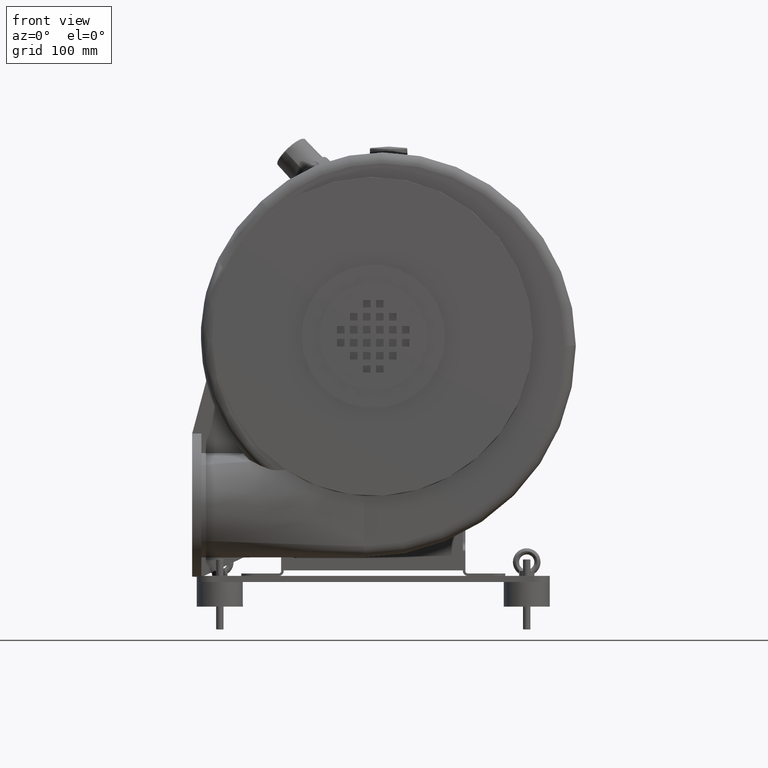
[diagram: clean part render]
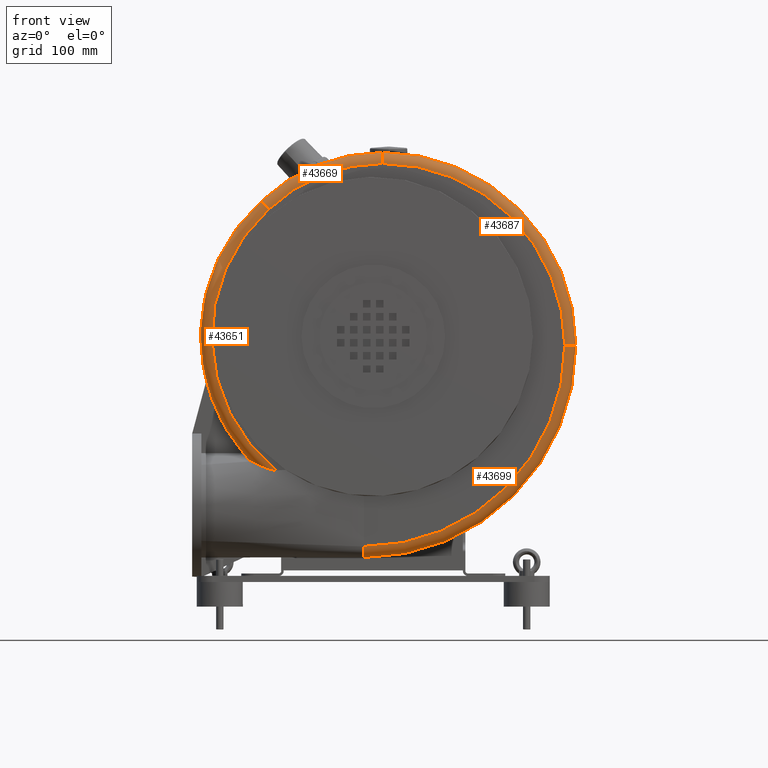
[diagram: same view with one multi-face feature highlighted, each face labeled with its STEP entity id]
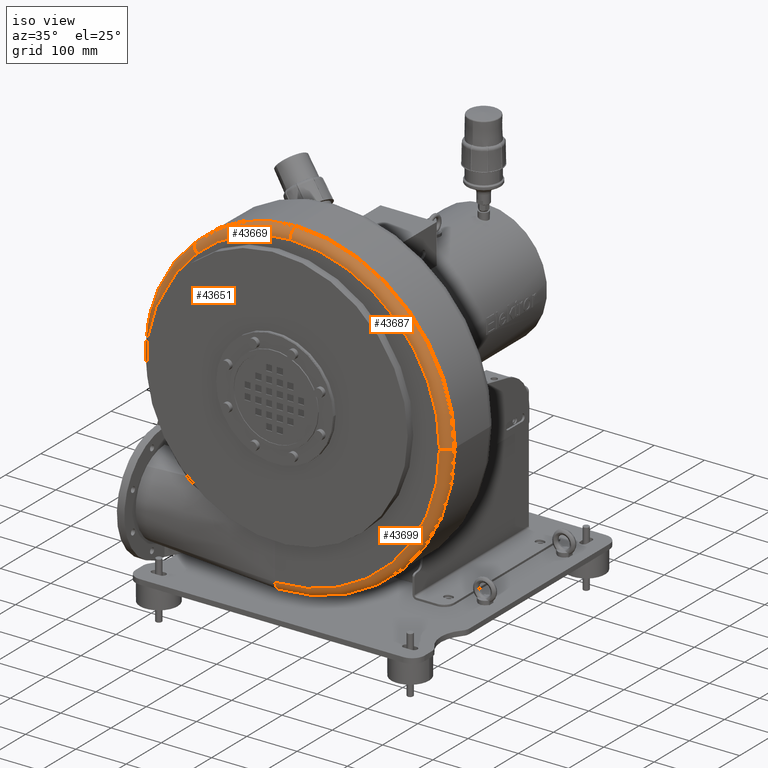
[diagram: same view with one multi-face feature highlighted, each face labeled with its STEP entity id]
A machine part, front view. The highlighted faces form ONE feature: a constant-radius fillet chain: 4 tangent blend faces with common blend radius 18 mm. The faces share edges in the B-rep.
A second angle (iso view) of the same feature is appended — it is thin or edge-on in the first view.
Their STEP definitions:
[1] entity #43651 (Torus):
#42413=CARTESIAN_POINT('',(-203.37789103907875,-237.49999999999869,200.18234135764231));
#42414=VERTEX_POINT('',#42413);
#42424=CARTESIAN_POINT('',(-182.43618941036615,-237.50000000000281,620.53333333335183));
#42425=VERTEX_POINT('',#42424);
#42426=CARTESIAN_POINT('',(15.00000000000718,-237.50000000000412,400.0000000000183));
#42427=DIRECTION('',(-1.773945E-014,-1.0,-5.767328E-015));
#42428=DIRECTION('',(-0.951002462149348,1.865343E-014,-0.309183306447613));
#42429=AXIS2_PLACEMENT_3D('',#42426,#42427,#42428);
#42430=CIRCLE('',#42429,296.0);
#42431=EDGE_CURVE('',#42425,#42414,#42430,.T.);
#42493=CARTESIAN_POINT('',(-197.2951817459091,-246.03399909930445,196.83105337426787));
#42494=VERTEX_POINT('',#42493);
#42502=CARTESIAN_POINT('',(-203.3778910390788,-237.49949792961496,200.18191200690083));
#42503=CARTESIAN_POINT('',(-202.82702772772384,-239.03307804273001,199.57991275789811));
#42504=CARTESIAN_POINT('',(-202.02598751699674,-240.48900591641603,198.99944824375234));
#42505=CARTESIAN_POINT('',(-201.06835072309389,-241.83929800821571,198.46457820114679));
#42506=CARTESIAN_POINT('',(-199.99184266929208,-243.35720158170648,197.86331484936153));
#42507=CARTESIAN_POINT('',(-198.7041394355324,-244.76131053907065,197.31211258270002));
#42508=CARTESIAN_POINT('',(-197.29518174590919,-246.03399909930445,196.83105337426792));
#42509=B_SPLINE_CURVE_WITH_KNOTS('',3,(#42502,#42503,#42504,#42505,#42506,#42507,#42508),.UNSPECIFIED.,.F.,.U.,(4,3,4),(0.000262802662768,0.521391874350161,1.107208591340905),.UNSPECIFIED.);
#42510=EDGE_CURVE('',#42414,#42494,#42509,.T.);
#43083=CARTESIAN_POINT('',(-170.19419237353699,-255.5000000000029,607.33333333335145));
#43084=VERTEX_POINT('',#43083);
#43092=CARTESIAN_POINT('',(-157.58720379927621,-255.49999999999929,182.06042790549301));
#43093=VERTEX_POINT('',#43092);
#43094=CARTESIAN_POINT('',(15.000000000006878,-255.50000000000412,400.00000000001819));
#43095=DIRECTION('',(1.773945E-014,1.0,5.767328E-015));
#43096=DIRECTION('',(-0.951002462149348,1.865343E-014,-0.309183306447613));
#43097=AXIS2_PLACEMENT_3D('',#43094,#43095,#43096);
#43098=CIRCLE('',#43097,278.0);
#43099=EDGE_CURVE('',#43093,#43084,#43098,.T.);
#43282=CARTESIAN_POINT('',(-197.29518174590913,-246.03399909930445,196.83105337426792));
#43283=CARTESIAN_POINT('',(-189.82858880499063,-250.01947993747086,192.13301479434767));
#43284=CARTESIAN_POINT('',(-180.85753594556485,-252.47575204428682,187.97862639215808));
#43285=CARTESIAN_POINT('',(-168.57445389169268,-254.70457851490795,183.71099388270147));
#43286=CARTESIAN_POINT('',(-164.20088505080682,-255.21158770018562,182.55940657433709));
#43287=CARTESIAN_POINT('',(-159.65687713610043,-255.46284629601871,182.07456711116424));
#43288=CARTESIAN_POINT('',(-158.60396125265157,-255.49999999999926,182.01557164370041));
#43289=CARTESIAN_POINT('',(-157.58720379927621,-255.49999999999929,182.06042790549299));
#43290=B_SPLINE_CURVE_WITH_KNOTS('',3,(#43282,#43283,#43284,#43285,#43286,#43287,#43288,#43289),.UNSPECIFIED.,.F.,.U.,(4,2,2,4),(0.0,2.904050115608655,4.6215907110657,5.10169561148826),.UNSPECIFIED.);
#43291=EDGE_CURVE('',#42494,#43093,#43290,.T.);
#43623=CARTESIAN_POINT('',(15.00000000000718,-237.50000000000412,400.0000000000183));
#43624=DIRECTION('',(1.670886E-014,1.0,8.937295E-015));
#43625=DIRECTION('',(-1.0,0.0,0.0));
#43626=AXIS2_PLACEMENT_3D('',#43623,#43624,#43625);
#43627=TOROIDAL_SURFACE('',#43626,278.0,18.0);
#43628=ORIENTED_EDGE('',*,*,#43291,.T.);
#43629=ORIENTED_EDGE('',*,*,#43099,.T.);
#43630=CARTESIAN_POINT('',(-170.19419237353699,-255.5000000000029,607.33333333335145));
#43631=CARTESIAN_POINT('',(-170.20071336580344,-255.5000000000029,607.34036446365781));
#43632=CARTESIAN_POINT('',(-170.20723435682038,-255.49999233934301,607.34739559274271));
#43633=CARTESIAN_POINT('',(-171.03273150283584,-255.49805280055526,608.23747155982346));
#43634=CARTESIAN_POINT('',(-171.84951386151585,-255.37530142006864,609.11815544678143));
#43635=CARTESIAN_POINT('',(-173.45411250033834,-254.89183214762727,610.84829908997972));
#43636=CARTESIAN_POINT('',(-174.2378918783987,-254.53233471987255,611.69340607969605));
#43637=CARTESIAN_POINT('',(-176.45792505463547,-253.14204566040621,614.08715793588374));
#43638=CARTESIAN_POINT('',(-177.78849036490914,-251.81120927420355,615.52185395687673));
#43639=CARTESIAN_POINT('',(-180.02764017207369,-248.47466010468497,617.93625307772754));
#43640=CARTESIAN_POINT('',(-180.91488514567899,-246.50095394843004,618.8929461521318));
#43641=CARTESIAN_POINT('',(-182.12492569284518,-242.16463165935039,620.19770364352121));
#43642=CARTESIAN_POINT('',(-182.43618941036615,-239.84352841455438,620.53333333335183));
#43643=CARTESIAN_POINT('',(-182.43618941036607,-237.50000000000281,620.53333333335195));
#43644=B_SPLINE_CURVE_WITH_KNOTS('',3,(#43630,#43631,#43632,#43633,#43634,#43635,#43636,#43637,#43638,#43639,#43640,#43641,#43642,#43643),.UNSPECIFIED.,.F.,.U.,(4,2,2,2,2,2,4),(-2.834885175046392,-2.83200831798652,-2.470701269327635,-2.109400304045128,-1.406172609260185,-0.703058524365479,0.0),.UNSPECIFIED.);
#43645=EDGE_CURVE('',#43084,#42425,#43644,.T.);
#43646=ORIENTED_EDGE('',*,*,#43645,.T.);
#43647=ORIENTED_EDGE('',*,*,#42431,.T.);
#43648=ORIENTED_EDGE('',*,*,#42510,.T.);
#43649=EDGE_LOOP('',(#43628,#43629,#43646,#43647,#43648));
#43650=FACE_OUTER_BOUND('',#43649,.T.);
#43651=ADVANCED_FACE('',(#43650),#43627,.T.);
[2] entity #43669 (Torus):
#42424=CARTESIAN_POINT('',(-182.43618941036615,-237.50000000000281,620.53333333335183));
#42425=VERTEX_POINT('',#42424);
#43074=CARTESIAN_POINT('',(15.0000000000067,-255.50000000000665,682.00000000001808));
#43075=VERTEX_POINT('',#43074);
#43083=CARTESIAN_POINT('',(-170.19419237353699,-255.5000000000029,607.33333333335145));
#43084=VERTEX_POINT('',#43083);
#43085=CARTESIAN_POINT('',(15.000000000006871,-255.50000000000426,415.00000000001819));
#43086=DIRECTION('',(-7.662253E-016,1.0,1.903699E-015));
#43087=DIRECTION('',(-0.37338345528205,-2.052114E-015,0.927677096473572));
#43088=AXIS2_PLACEMENT_3D('',#43085,#43086,#43087);
#43089=CIRCLE('',#43088,267.0);
#43090=EDGE_CURVE('',#43084,#43075,#43089,.T.);
#43586=CARTESIAN_POINT('',(15.000000000007008,-237.50000000000682,700.0000000000183));
#43587=VERTEX_POINT('',#43586);
#43612=CARTESIAN_POINT('',(15.000000000007173,-237.50000000000426,415.0000000000183));
#43613=DIRECTION('',(7.662253E-016,-1.0,-1.903699E-015));
#43614=DIRECTION('',(-0.37338345528205,-2.052114E-015,0.927677096473572));
#43615=AXIS2_PLACEMENT_3D('',#43612,#43613,#43614);
#43616=CIRCLE('',#43615,285.0);
#43617=EDGE_CURVE('',#43587,#42425,#43616,.T.);
#43630=CARTESIAN_POINT('',(-170.19419237353699,-255.5000000000029,607.33333333335145));
#43631=CARTESIAN_POINT('',(-170.20071336580344,-255.5000000000029,607.34036446365781));
#43632=CARTESIAN_POINT('',(-170.20723435682038,-255.49999233934301,607.34739559274271));
#43633=CARTESIAN_POINT('',(-171.03273150283584,-255.49805280055526,608.23747155982346));
#43634=CARTESIAN_POINT('',(-171.84951386151585,-255.37530142006864,609.11815544678143));
#43635=CARTESIAN_POINT('',(-173.45411250033834,-254.89183214762727,610.84829908997972));
#43636=CARTESIAN_POINT('',(-174.2378918783987,-254.53233471987255,611.69340607969605));
#43637=CARTESIAN_POINT('',(-176.45792505463547,-253.14204566040621,614.08715793588374));
#43638=CARTESIAN_POINT('',(-177.78849036490914,-251.81120927420355,615.52185395687673));
#43639=CARTESIAN_POINT('',(-180.02764017207369,-248.47466010468497,617.93625307772754));
#43640=CARTESIAN_POINT('',(-180.91488514567899,-246.50095394843004,618.8929461521318));
#43641=CARTESIAN_POINT('',(-182.12492569284518,-242.16463165935039,620.19770364352121));
#43642=CARTESIAN_POINT('',(-182.43618941036615,-239.84352841455438,620.53333333335183));
#43643=CARTESIAN_POINT('',(-182.43618941036607,-237.50000000000281,620.53333333335195));
#43644=B_SPLINE_CURVE_WITH_KNOTS('',3,(#43630,#43631,#43632,#43633,#43634,#43635,#43636,#43637,#43638,#43639,#43640,#43641,#43642,#43643),.UNSPECIFIED.,.F.,.U.,(4,2,2,2,2,2,4),(-2.834885175046392,-2.83200831798652,-2.470701269327635,-2.109400304045128,-1.406172609260185,-0.703058524365479,0.0),.UNSPECIFIED.);
#43645=EDGE_CURVE('',#43084,#42425,#43644,.T.);
#43652=CARTESIAN_POINT('',(15.000000000007173,-237.50000000000426,415.0000000000183));
#43653=DIRECTION('',(1.670886E-014,1.0,8.937295E-015));
#43654=DIRECTION('',(-1.0,0.0,0.0));
#43655=AXIS2_PLACEMENT_3D('',#43652,#43653,#43654);
#43656=TOROIDAL_SURFACE('',#43655,267.0,18.0);
#43657=CARTESIAN_POINT('',(15.000000000007002,-237.50000000000665,682.00000000001842));
#43658=DIRECTION('',(-1.0,0.0,0.0));
#43659=DIRECTION('',(0.0,-1.0,0.0));
#43660=AXIS2_PLACEMENT_3D('',#43657,#43658,#43659);
#43661=CIRCLE('',#43660,18.0);
#43662=EDGE_CURVE('',#43075,#43587,#43661,.T.);
#43663=ORIENTED_EDGE('',*,*,#43662,.T.);
#43664=ORIENTED_EDGE('',*,*,#43617,.T.);
#43665=ORIENTED_EDGE('',*,*,#43645,.F.);
#43666=ORIENTED_EDGE('',*,*,#43090,.T.);
#43667=EDGE_LOOP('',(#43663,#43664,#43665,#43666));
#43668=FACE_OUTER_BOUND('',#43667,.T.);
#43669=ADVANCED_FACE('',(#43668),#43656,.T.);
[3] entity #43687 (Torus):
#43065=CARTESIAN_POINT('',(312.00000000000693,-255.50000000000895,385.0000000000183));
#43066=VERTEX_POINT('',#43065);
#43074=CARTESIAN_POINT('',(15.0000000000067,-255.50000000000665,682.00000000001808));
#43075=VERTEX_POINT('',#43074);
#43076=CARTESIAN_POINT('',(15.000000000006889,-255.50000000000398,385.00000000001819));
#43077=DIRECTION('',(1.282308E-014,1.0,1.282308E-014));
#43078=DIRECTION('',(0.707106781186547,-1.813457E-014,0.707106781186548));
#43079=AXIS2_PLACEMENT_3D('',#43076,#43077,#43078);
#43080=CIRCLE('',#43079,297.0);
#43081=EDGE_CURVE('',#43075,#43066,#43080,.T.);
#43560=CARTESIAN_POINT('',(330.00000000000716,-237.50000000000924,385.00000000001853));
#43561=VERTEX_POINT('',#43560);
#43586=CARTESIAN_POINT('',(15.000000000007008,-237.50000000000682,700.0000000000183));
#43587=VERTEX_POINT('',#43586);
#43594=CARTESIAN_POINT('',(15.000000000007191,-237.50000000000398,385.0000000000183));
#43595=DIRECTION('',(-1.282308E-014,-1.0,-1.282308E-014));
#43596=DIRECTION('',(0.707106781186547,-1.813457E-014,0.707106781186548));
#43597=AXIS2_PLACEMENT_3D('',#43594,#43595,#43596);
#43598=CIRCLE('',#43597,315.0);
#43599=EDGE_CURVE('',#43561,#43587,#43598,.T.);
#43657=CARTESIAN_POINT('',(15.000000000007002,-237.50000000000665,682.00000000001842));
#43658=DIRECTION('',(-1.0,0.0,0.0));
#43659=DIRECTION('',(0.0,-1.0,0.0));
#43660=AXIS2_PLACEMENT_3D('',#43657,#43658,#43659);
#43661=CIRCLE('',#43660,18.0);
#43662=EDGE_CURVE('',#43075,#43587,#43661,.T.);
#43670=CARTESIAN_POINT('',(15.000000000007191,-237.50000000000398,385.0000000000183));
#43671=DIRECTION('',(1.670886E-014,1.0,8.937295E-015));
#43672=DIRECTION('',(-1.0,0.0,0.0));
#43673=AXIS2_PLACEMENT_3D('',#43670,#43671,#43672);
#43674=TOROIDAL_SURFACE('',#43673,297.0,18.0);
#43675=CARTESIAN_POINT('',(312.00000000000722,-237.50000000000895,385.00000000001847));
#43676=DIRECTION('',(0.0,0.0,1.0));
#43677=DIRECTION('',(0.0,-1.0,0.0));
#43678=AXIS2_PLACEMENT_3D('',#43675,#43676,#43677);
#43679=CIRCLE('',#43678,18.0);
#43680=EDGE_CURVE('',#43066,#43561,#43679,.T.);
#43681=ORIENTED_EDGE('',*,*,#43680,.T.);
#43682=ORIENTED_EDGE('',*,*,#43599,.T.);
#43683=ORIENTED_EDGE('',*,*,#43662,.F.);
#43684=ORIENTED_EDGE('',*,*,#43081,.T.);
#43685=EDGE_LOOP('',(#43681,#43682,#43683,#43684));
#43686=FACE_OUTER_BOUND('',#43685,.T.);
#43687=ADVANCED_FACE('',(#43686),#43674,.T.);
[4] entity #43699 (Torus):
#42830=CARTESIAN_POINT('',(-14.999999999992573,-237.50000000000043,40.000000000018332));
#42831=VERTEX_POINT('',#42830);
#43057=CARTESIAN_POINT('',(-14.999999999992886,-255.50000000000057,58.000000000018161));
#43058=VERTEX_POINT('',#43057);
#43065=CARTESIAN_POINT('',(312.00000000000693,-255.50000000000895,385.0000000000183));
#43066=VERTEX_POINT('',#43065);
#43067=CARTESIAN_POINT('',(-14.999999999993111,-255.5000000000035,385.00000000001819));
#43068=DIRECTION('',(3.885781E-015,1.0,-3.885781E-015));
#43069=DIRECTION('',(0.707106781186548,-5.495324E-015,-0.707106781186547));
#43070=AXIS2_PLACEMENT_3D('',#43067,#43068,#43069);
#43071=CIRCLE('',#43070,327.00000000000006);
#43072=EDGE_CURVE('',#43066,#43058,#43071,.T.);
#43442=CARTESIAN_POINT('',(-14.999999999992593,-237.50000000000057,58.000000000018304));
#43443=DIRECTION('',(1.0,0.0,0.0));
#43444=DIRECTION('',(0.0,0.0,-1.0));
#43445=AXIS2_PLACEMENT_3D('',#43442,#43443,#43444);
#43446=CIRCLE('',#43445,18.0);
#43447=EDGE_CURVE('',#43058,#42831,#43446,.T.);
#43560=CARTESIAN_POINT('',(330.00000000000716,-237.50000000000924,385.00000000001853));
#43561=VERTEX_POINT('',#43560);
#43568=CARTESIAN_POINT('',(-14.999999999992809,-237.50000000000347,385.0000000000183));
#43569=DIRECTION('',(-3.885781E-015,-1.0,3.885781E-015));
#43570=DIRECTION('',(0.707106781186548,-5.495324E-015,-0.707106781186547));
#43571=AXIS2_PLACEMENT_3D('',#43568,#43569,#43570);
#43572=CIRCLE('',#43571,345.0);
#43573=EDGE_CURVE('',#42831,#43561,#43572,.T.);
#43675=CARTESIAN_POINT('',(312.00000000000722,-237.50000000000895,385.00000000001847));
#43676=DIRECTION('',(0.0,0.0,1.0));
#43677=DIRECTION('',(0.0,-1.0,0.0));
#43678=AXIS2_PLACEMENT_3D('',#43675,#43676,#43677);
#43679=CIRCLE('',#43678,18.0);
#43680=EDGE_CURVE('',#43066,#43561,#43679,.T.);
#43688=CARTESIAN_POINT('',(-14.999999999992809,-237.50000000000347,385.0000000000183));
#43689=DIRECTION('',(1.670886E-014,1.0,8.937295E-015));
#43690=DIRECTION('',(-1.0,0.0,0.0));
#43691=AXIS2_PLACEMENT_3D('',#43688,#43689,#43690);
#43692=TOROIDAL_SURFACE('',#43691,327.0,18.0);
#43693=ORIENTED_EDGE('',*,*,#43447,.T.);
#43694=ORIENTED_EDGE('',*,*,#43573,.T.);
#43695=ORIENTED_EDGE('',*,*,#43680,.F.);
#43696=ORIENTED_EDGE('',*,*,#43072,.T.);
#43697=EDGE_LOOP('',(#43693,#43694,#43695,#43696));
#43698=FACE_OUTER_BOUND('',#43697,.T.);
#43699=ADVANCED_FACE('',(#43698),#43692,.T.);